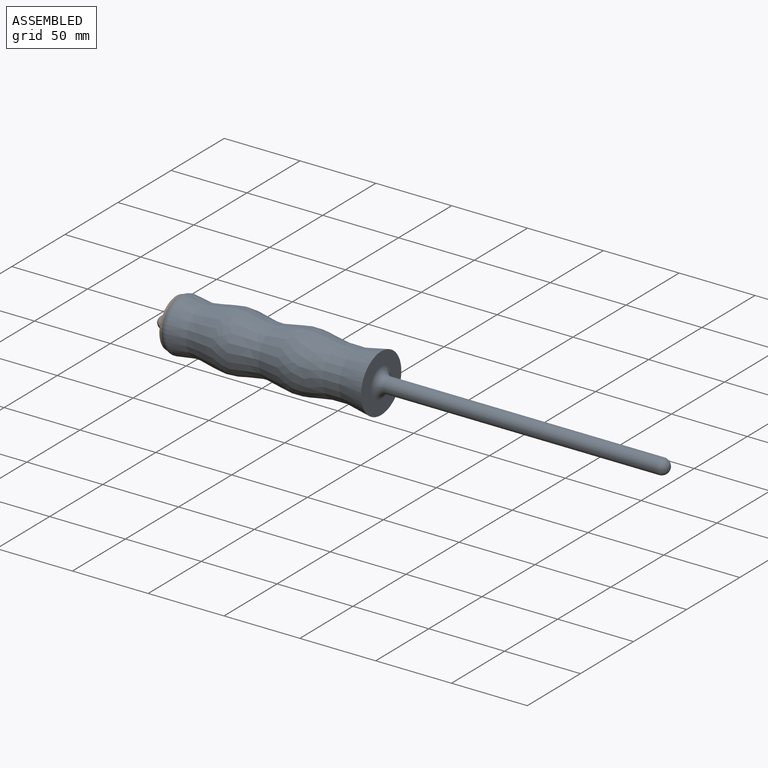
[diagram: assembled view]
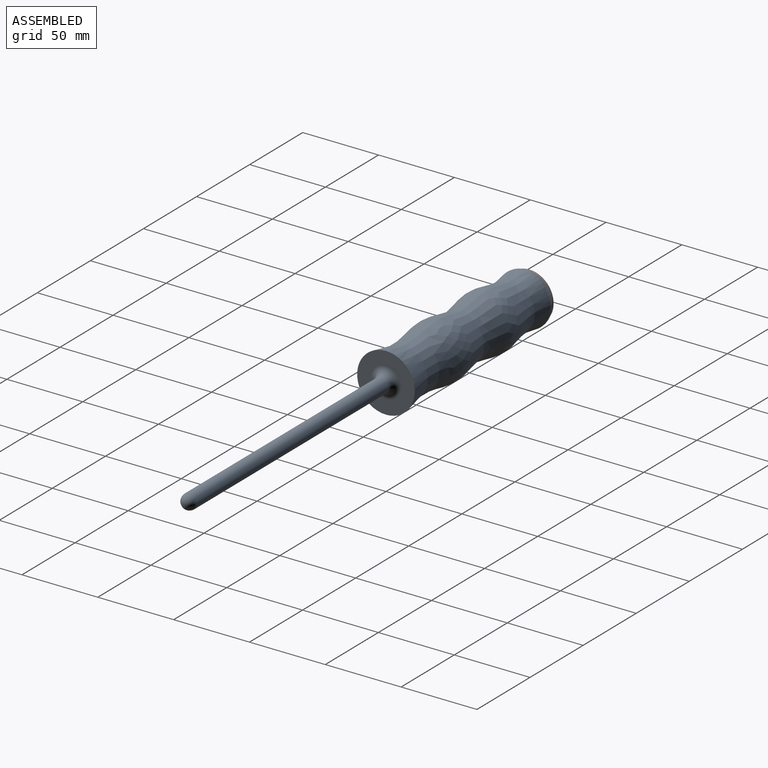
[diagram: assembled view, second angle]
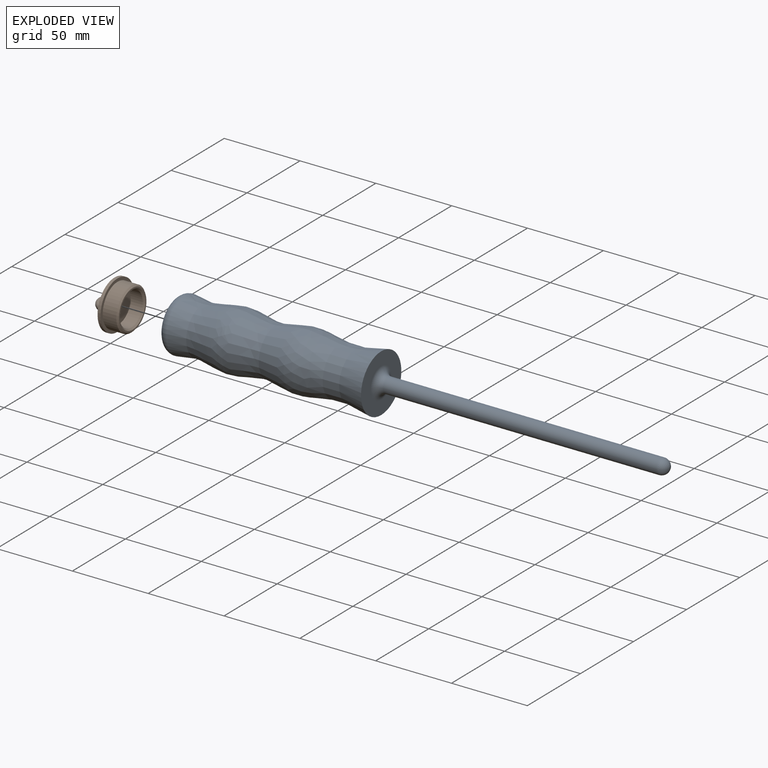
[diagram: exploded view]
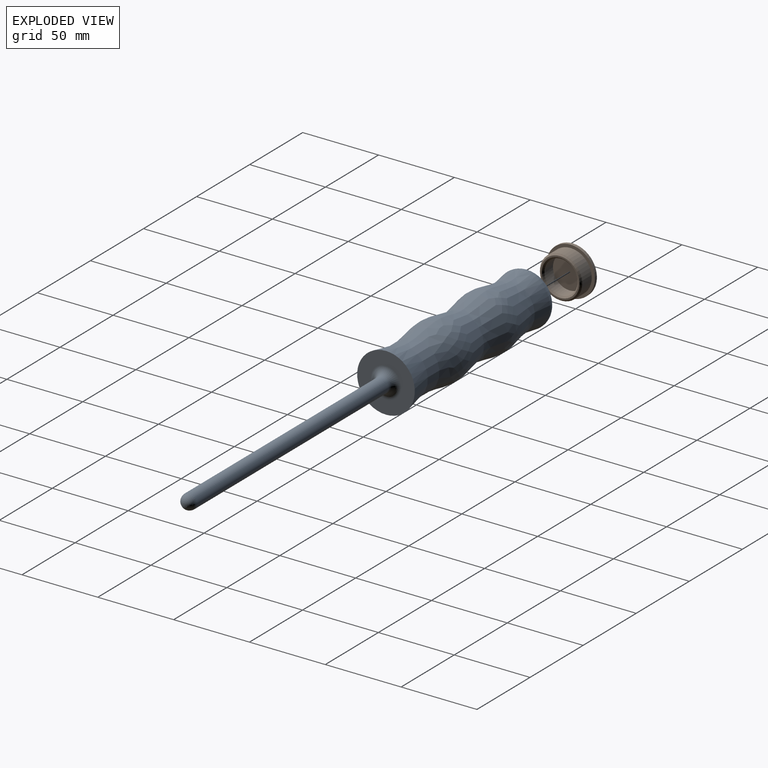
[diagram: exploded view, second angle]
ASSEMBLY  parts=2 mates=2
PART A: 9 faces, bbox 325x38x38 mm
  f0: plane 25.03x25.03mm, normal (-1,0,0), area 177.9mm2, adj f1,f2
  f1: torus R=12.51mm, axis (-1,0,0), area 906.3mm2, adj f0
  f2: cylinder r=10mm len=128mm, axis (-1,0,0), area 8042.5mm2, adj f0,f3
  f3: plane 20x20mm, normal (-1,0,0), area 314.2mm2, adj f2
  f4: revolved ~128.81x38mm, area 28258.4mm2, adj f5
  f5: plane 38x38mm, normal (1,0,0), area 820mm2, adj f4,f6
  f6: torus R=10mm, axis (-1,0,0), area 336.4mm2, adj f5,f7
  f7: cylinder r=5mm len=180mm, axis (-1,0,0), area 5654.9mm2, adj f6,f8
  f8: sphere r=5mm, area 157.1mm2, adj f7
PART B: 10 faces, bbox 23.3x31.9x31.9 mm
  f0: plane 31.9x31.9mm, normal (-1,0,0), area 770.1mm2, adj f4,f9
  f1: plane 25.9x25.9mm, normal (1,0,0), area 78.2mm2, adj f7,f8
  f2: cylinder r=13.95mm len=27.9mm, axis (-1,0,0), area 788.9mm2, adj f3,f8
  f3: plane 31.9x31.9mm, normal (1,0,0), area 187.9mm2, adj f2,f4
  f4: cylinder r=15.95mm len=31.9mm, axis (-1,0,0), area 200.4mm2, adj f0,f3
  f5: cylinder r=10.95mm len=21.9mm, axis (1,0,0), area 550.4mm2, adj f6,f7
  f6: plane 21.9x21.9mm, normal (1,0,0), area 376.7mm2, adj f5
  f7: cone r=10.95mm half-angle=45deg, axis (1,0,0), area 101.7mm2, adj f1,f5
  f8: cone r=13.95mm half-angle=45deg, axis (-1,0,0), area 119.5mm2, adj f1,f2
  f9: torus R=8.27mm, axis (0,0,-1), area 351.6mm2, adj f0
PLACE A t=(-6.41,0,0)mm
PLACE B t=(-4.5,-49.96,0)mm
MATE slider B.f2 <-> A.f1  axis (-1,0,0) through (0,0,0)mm
MATE fastened A.f1 <-> B.f2  axis (-1,0,0) through (-4.5,0,0)mm
